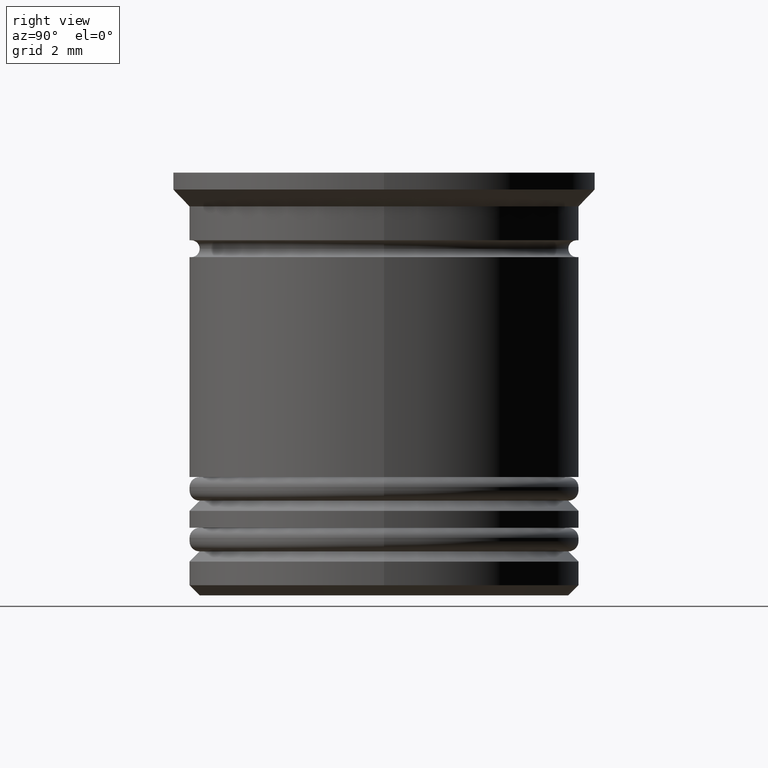
[diagram: clean part render]
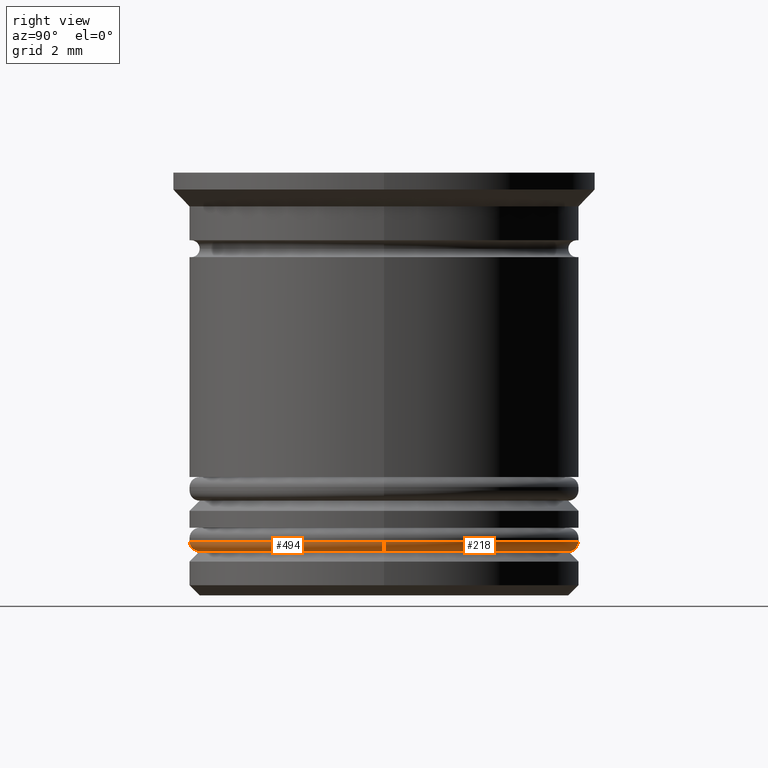
[diagram: same view with one multi-face feature highlighted, each face labeled with its STEP entity id]
A machine part, right view. The highlighted faces form ONE feature: a constant-radius fillet chain: 2 tangent blend faces with common blend radius 0.3 mm. The faces share edges in the B-rep.
Their STEP definitions:
[1] entity #218 (Torus):
#85 = ORIENTED_EDGE ( 'NONE', *, *, #760, .F. ) ;
#95 = CARTESIAN_POINT ( 'NONE',  ( 5.750000000000001776, 0.000000000000000000, -10.90000000000000391 ) ) ;
#98 = FACE_OUTER_BOUND ( 'NONE', #1592, .T. ) ;
#127 = AXIS2_PLACEMENT_3D ( 'NONE', #704, #545, #1271 ) ;
#147 = CARTESIAN_POINT ( 'NONE',  ( -5.450000000000001954, 6.674325055353077210E-16, -10.90000000000000391 ) ) ;
#185 = VERTEX_POINT ( 'NONE', #295 ) ;
#218 = ADVANCED_FACE ( 'NONE', ( #98 ), #407, .T. ) ;
#263 = EDGE_CURVE ( 'NONE', #1248, #1840, #686, .T. ) ;
#295 = CARTESIAN_POINT ( 'NONE',  ( 5.450000000000001954, 0.000000000000000000, -11.20000000000000462 ) ) ;
#363 = AXIS2_PLACEMENT_3D ( 'NONE', #882, #1633, #1500 ) ;
#407 = TOROIDAL_SURFACE ( 'NONE', #1968, 5.450000000000001954, 0.2999999999999999889 ) ;
#545 = DIRECTION ( 'NONE',  ( 0.000000000000000000, -1.000000000000000000, 0.000000000000000000 ) ) ;
#570 = DIRECTION ( 'NONE',  ( 0.000000000000000000, 0.000000000000000000, 1.000000000000000000 ) ) ;
#686 = CIRCLE ( 'NONE', #1218, 5.750000000000001776 ) ;
#704 = CARTESIAN_POINT ( 'NONE',  ( 5.450000000000001954, 0.000000000000000000, -10.90000000000000391 ) ) ;
#706 = ORIENTED_EDGE ( 'NONE', *, *, #263, .F. ) ;
#760 = EDGE_CURVE ( 'NONE', #1213, #185, #1767, .T. ) ;
#882 = CARTESIAN_POINT ( 'NONE',  ( 0.000000000000000000, 0.000000000000000000, -11.20000000000000462 ) ) ;
#976 = EDGE_CURVE ( 'NONE', #185, #1248, #1940, .T. ) ;
#1213 = VERTEX_POINT ( 'NONE', #1802 ) ;
#1218 = AXIS2_PLACEMENT_3D ( 'NONE', #1831, #1326, #1681 ) ;
#1248 = VERTEX_POINT ( 'NONE', #95 ) ;
#1271 = DIRECTION ( 'NONE',  ( 0.000000000000000000, 0.000000000000000000, -1.000000000000000000 ) ) ;
#1294 = ORIENTED_EDGE ( 'NONE', *, *, #976, .F. ) ;
#1326 = DIRECTION ( 'NONE',  ( 0.000000000000000000, 0.000000000000000000, 1.000000000000000000 ) ) ;
#1327 = AXIS2_PLACEMENT_3D ( 'NONE', #147, #1980, #1989 ) ;
#1342 = CARTESIAN_POINT ( 'NONE',  ( 0.000000000000000000, 0.000000000000000000, -10.90000000000000391 ) ) ;
#1500 = DIRECTION ( 'NONE',  ( 1.000000000000000000, 0.000000000000000000, 0.000000000000000000 ) ) ;
#1530 = CARTESIAN_POINT ( 'NONE',  ( -5.750000000000001776, 7.041719095097282852E-16, -10.90000000000000391 ) ) ;
#1592 = EDGE_LOOP ( 'NONE', ( #85, #1712, #706, #1294 ) ) ;
#1598 = CIRCLE ( 'NONE', #1327, 0.2999999999999999334 ) ;
#1633 = DIRECTION ( 'NONE',  ( -0.000000000000000000, -0.000000000000000000, -1.000000000000000000 ) ) ;
#1681 = DIRECTION ( 'NONE',  ( 1.000000000000000000, 0.000000000000000000, 0.000000000000000000 ) ) ;
#1712 = ORIENTED_EDGE ( 'NONE', *, *, #1770, .T. ) ;
#1767 = CIRCLE ( 'NONE', #363, 5.450000000000001954 ) ;
#1770 = EDGE_CURVE ( 'NONE', #1213, #1840, #1598, .T. ) ;
#1794 = DIRECTION ( 'NONE',  ( 1.000000000000000000, 0.000000000000000000, 0.000000000000000000 ) ) ;
#1802 = CARTESIAN_POINT ( 'NONE',  ( -5.450000000000001954, 6.858022075225179538E-16, -11.20000000000000462 ) ) ;
#1831 = CARTESIAN_POINT ( 'NONE',  ( 0.000000000000000000, 0.000000000000000000, -10.90000000000000391 ) ) ;
#1840 = VERTEX_POINT ( 'NONE', #1530 ) ;
#1940 = CIRCLE ( 'NONE', #127, 0.2999999999999999334 ) ;
#1968 = AXIS2_PLACEMENT_3D ( 'NONE', #1342, #570, #1794 ) ;
#1980 = DIRECTION ( 'NONE',  ( 1.224646799147353207E-16, 1.000000000000000000, -0.000000000000000000 ) ) ;
#1989 = DIRECTION ( 'NONE',  ( -1.000000000000000000, 1.224646799147353207E-16, 0.000000000000000000 ) ) ;
[2] entity #494 (Torus):
#95 = CARTESIAN_POINT ( 'NONE',  ( 5.750000000000001776, 0.000000000000000000, -10.90000000000000391 ) ) ;
#127 = AXIS2_PLACEMENT_3D ( 'NONE', #704, #545, #1271 ) ;
#147 = CARTESIAN_POINT ( 'NONE',  ( -5.450000000000001954, 6.674325055353077210E-16, -10.90000000000000391 ) ) ;
#185 = VERTEX_POINT ( 'NONE', #295 ) ;
#209 = DIRECTION ( 'NONE',  ( 0.000000000000000000, 0.000000000000000000, 1.000000000000000000 ) ) ;
#260 = ORIENTED_EDGE ( 'NONE', *, *, #1013, .F. ) ;
#295 = CARTESIAN_POINT ( 'NONE',  ( 5.450000000000001954, 0.000000000000000000, -11.20000000000000462 ) ) ;
#345 = ORIENTED_EDGE ( 'NONE', *, *, #635, .F. ) ;
#367 = ORIENTED_EDGE ( 'NONE', *, *, #1770, .F. ) ;
#494 = ADVANCED_FACE ( 'NONE', ( #645 ), #1159, .T. ) ;
#517 = ORIENTED_EDGE ( 'NONE', *, *, #976, .T. ) ;
#545 = DIRECTION ( 'NONE',  ( 0.000000000000000000, -1.000000000000000000, 0.000000000000000000 ) ) ;
#628 = DIRECTION ( 'NONE',  ( -0.000000000000000000, -0.000000000000000000, -1.000000000000000000 ) ) ;
#635 = EDGE_CURVE ( 'NONE', #185, #1213, #752, .T. ) ;
#645 = FACE_OUTER_BOUND ( 'NONE', #1841, .T. ) ;
#704 = CARTESIAN_POINT ( 'NONE',  ( 5.450000000000001954, 0.000000000000000000, -10.90000000000000391 ) ) ;
#752 = CIRCLE ( 'NONE', #1599, 5.450000000000001954 ) ;
#891 = DIRECTION ( 'NONE',  ( 1.000000000000000000, 0.000000000000000000, 0.000000000000000000 ) ) ;
#905 = DIRECTION ( 'NONE',  ( 0.000000000000000000, 0.000000000000000000, 1.000000000000000000 ) ) ;
#940 = AXIS2_PLACEMENT_3D ( 'NONE', #1609, #209, #1139 ) ;
#976 = EDGE_CURVE ( 'NONE', #185, #1248, #1940, .T. ) ;
#1013 = EDGE_CURVE ( 'NONE', #1840, #1248, #1871, .T. ) ;
#1096 = AXIS2_PLACEMENT_3D ( 'NONE', #1703, #905, #1693 ) ;
#1139 = DIRECTION ( 'NONE',  ( 1.000000000000000000, 0.000000000000000000, 0.000000000000000000 ) ) ;
#1159 = TOROIDAL_SURFACE ( 'NONE', #940, 5.450000000000001954, 0.2999999999999999889 ) ;
#1213 = VERTEX_POINT ( 'NONE', #1802 ) ;
#1248 = VERTEX_POINT ( 'NONE', #95 ) ;
#1271 = DIRECTION ( 'NONE',  ( 0.000000000000000000, 0.000000000000000000, -1.000000000000000000 ) ) ;
#1327 = AXIS2_PLACEMENT_3D ( 'NONE', #147, #1980, #1989 ) ;
#1530 = CARTESIAN_POINT ( 'NONE',  ( -5.750000000000001776, 7.041719095097282852E-16, -10.90000000000000391 ) ) ;
#1598 = CIRCLE ( 'NONE', #1327, 0.2999999999999999334 ) ;
#1599 = AXIS2_PLACEMENT_3D ( 'NONE', #1936, #628, #891 ) ;
#1609 = CARTESIAN_POINT ( 'NONE',  ( 0.000000000000000000, 0.000000000000000000, -10.90000000000000391 ) ) ;
#1693 = DIRECTION ( 'NONE',  ( 1.000000000000000000, 0.000000000000000000, 0.000000000000000000 ) ) ;
#1703 = CARTESIAN_POINT ( 'NONE',  ( 0.000000000000000000, 0.000000000000000000, -10.90000000000000391 ) ) ;
#1770 = EDGE_CURVE ( 'NONE', #1213, #1840, #1598, .T. ) ;
#1802 = CARTESIAN_POINT ( 'NONE',  ( -5.450000000000001954, 6.858022075225179538E-16, -11.20000000000000462 ) ) ;
#1840 = VERTEX_POINT ( 'NONE', #1530 ) ;
#1841 = EDGE_LOOP ( 'NONE', ( #367, #345, #517, #260 ) ) ;
#1871 = CIRCLE ( 'NONE', #1096, 5.750000000000001776 ) ;
#1936 = CARTESIAN_POINT ( 'NONE',  ( 0.000000000000000000, 0.000000000000000000, -11.20000000000000462 ) ) ;
#1940 = CIRCLE ( 'NONE', #127, 0.2999999999999999334 ) ;
#1980 = DIRECTION ( 'NONE',  ( 1.224646799147353207E-16, 1.000000000000000000, -0.000000000000000000 ) ) ;
#1989 = DIRECTION ( 'NONE',  ( -1.000000000000000000, 1.224646799147353207E-16, 0.000000000000000000 ) ) ;